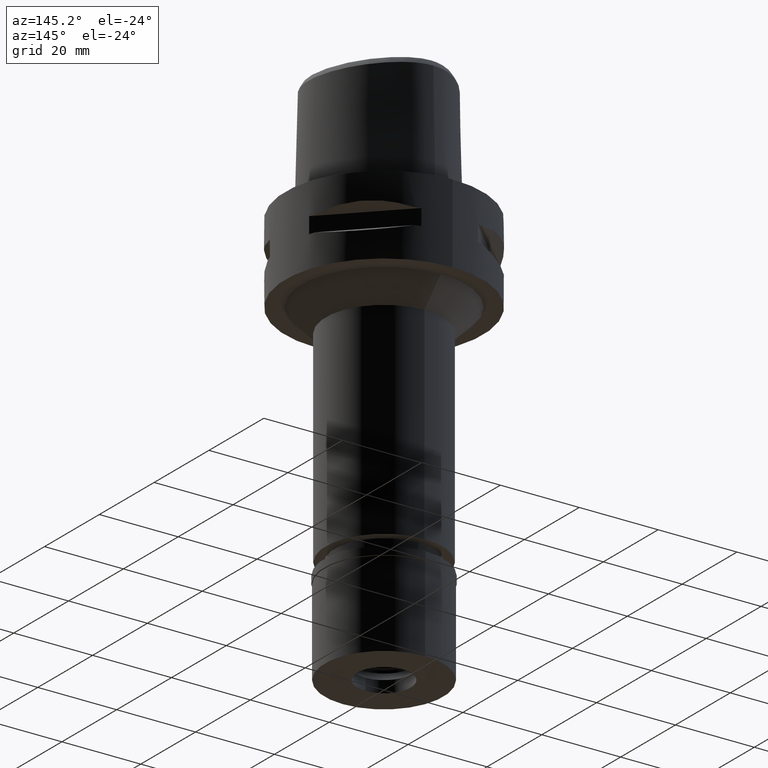
[diagram: clean part render]
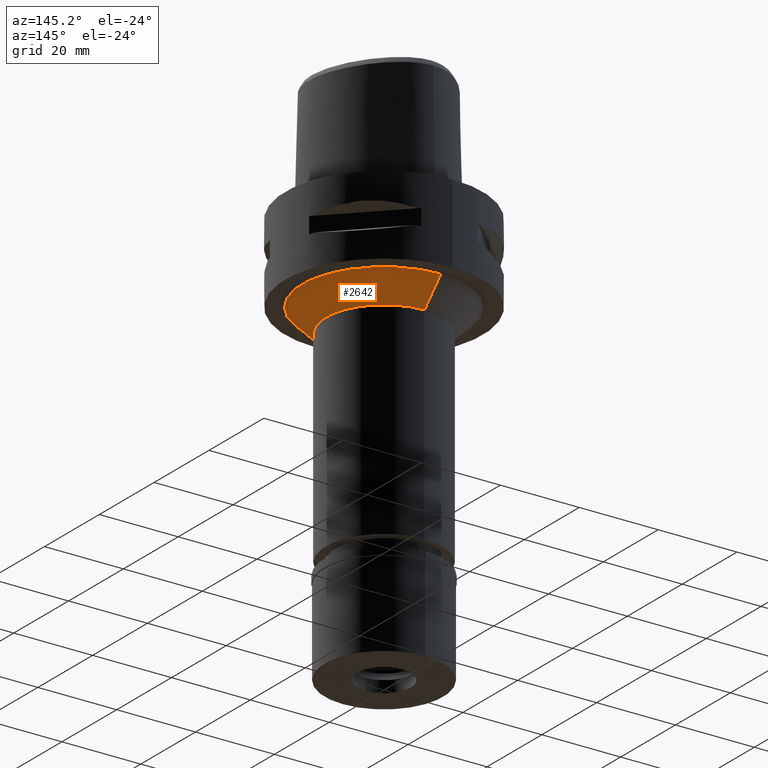
[diagram: same view with one face highlighted and labeled with its STEP entity id]
A machine part, auxiliary view. The second image highlights one B-rep face of the part: STEP entity #2642.
In plain terms, the highlighted conical surface has half-angle 45 deg.
Its self-contained STEP definition (entity closure, byte-faithful):
#238 = CARTESIAN_POINT ( 'NONE',  ( 0.0000000000000000000, -14.75000000000000000, -26.00000000000000000 ) ) ;
#325 = EDGE_CURVE ( 'NONE', #1513, #4173, #4283, .T. ) ;
#391 = VECTOR ( 'NONE', #4583, 1000.000000000000114 ) ;
#529 = EDGE_CURVE ( 'NONE', #2774, #1513, #710, .T. ) ;
#642 = CARTESIAN_POINT ( 'NONE',  ( 0.0000000000000000000, 0.0000000000000000000, -20.00000000000000000 ) ) ;
#710 = LINE ( 'NONE', #3728, #391 ) ;
#796 = ORIENTED_EDGE ( 'NONE', *, *, #3725, .T. ) ;
#1021 = AXIS2_PLACEMENT_3D ( 'NONE', #3408, #2595, #4098 ) ;
#1365 = DIRECTION ( 'NONE',  ( 0.0000000000000000000, 1.000000000000000000, 0.0000000000000000000 ) ) ;
#1384 = EDGE_LOOP ( 'NONE', ( #796, #3941, #4072, #1638 ) ) ;
#1513 = VERTEX_POINT ( 'NONE', #4588 ) ;
#1638 = ORIENTED_EDGE ( 'NONE', *, *, #529, .F. ) ;
#1649 = EDGE_CURVE ( 'NONE', #4224, #4173, #2573, .T. ) ;
#1800 = CIRCLE ( 'NONE', #3383, 20.75000000000000000 ) ;
#1870 = CARTESIAN_POINT ( 'NONE',  ( 0.0000000000000000000, -20.75000000000000000, -20.00000000000000000 ) ) ;
#2248 = DIRECTION ( 'NONE',  ( 0.0000000000000000000, 0.7071067811865474617, -0.7071067811865474617 ) ) ;
#2573 = LINE ( 'NONE', #4918, #4802 ) ;
#2595 = DIRECTION ( 'NONE',  ( 0.0000000000000000000, 0.0000000000000000000, -1.000000000000000000 ) ) ;
#2642 = ADVANCED_FACE ( 'NONE', ( #4776 ), #4805, .T. ) ;
#2774 = VERTEX_POINT ( 'NONE', #4152 ) ;
#3116 = CARTESIAN_POINT ( 'NONE',  ( 0.0000000000000000000, 0.0000000000000000000, -23.00000000000000000 ) ) ;
#3206 = AXIS2_PLACEMENT_3D ( 'NONE', #3116, #4642, #1365 ) ;
#3383 = AXIS2_PLACEMENT_3D ( 'NONE', #642, #3588, #3570 ) ;
#3408 = CARTESIAN_POINT ( 'NONE',  ( 0.0000000000000000000, 0.0000000000000000000, -26.00000000000000000 ) ) ;
#3570 = DIRECTION ( 'NONE',  ( 0.0000000000000000000, 1.000000000000000000, 0.0000000000000000000 ) ) ;
#3588 = DIRECTION ( 'NONE',  ( 0.0000000000000000000, 0.0000000000000000000, -1.000000000000000000 ) ) ;
#3725 = EDGE_CURVE ( 'NONE', #2774, #4224, #1800, .T. ) ;
#3728 = CARTESIAN_POINT ( 'NONE',  ( 0.0000000000000000000, 20.75000000000000000, -20.00000000000000000 ) ) ;
#3941 = ORIENTED_EDGE ( 'NONE', *, *, #1649, .T. ) ;
#4072 = ORIENTED_EDGE ( 'NONE', *, *, #325, .F. ) ;
#4098 = DIRECTION ( 'NONE',  ( 0.0000000000000000000, 1.000000000000000000, 0.0000000000000000000 ) ) ;
#4152 = CARTESIAN_POINT ( 'NONE',  ( 0.0000000000000000000, 20.75000000000000000, -20.00000000000000000 ) ) ;
#4173 = VERTEX_POINT ( 'NONE', #238 ) ;
#4224 = VERTEX_POINT ( 'NONE', #1870 ) ;
#4283 = CIRCLE ( 'NONE', #1021, 14.75000000000000000 ) ;
#4583 = DIRECTION ( 'NONE',  ( 0.0000000000000000000, -0.7071067811865474617, -0.7071067811865474617 ) ) ;
#4588 = CARTESIAN_POINT ( 'NONE',  ( 0.0000000000000000000, 14.75000000000000000, -26.00000000000000000 ) ) ;
#4642 = DIRECTION ( 'NONE',  ( 0.0000000000000000000, 0.0000000000000000000, 1.000000000000000000 ) ) ;
#4776 = FACE_OUTER_BOUND ( 'NONE', #1384, .T. ) ;
#4802 = VECTOR ( 'NONE', #2248, 1000.000000000000114 ) ;
#4805 = CONICAL_SURFACE ( 'NONE', #3206, 17.75000000000000000, 0.7853981633972997312 ) ;
#4918 = CARTESIAN_POINT ( 'NONE',  ( 0.0000000000000000000, -20.75000000000000000, -20.00000000000000000 ) ) ;